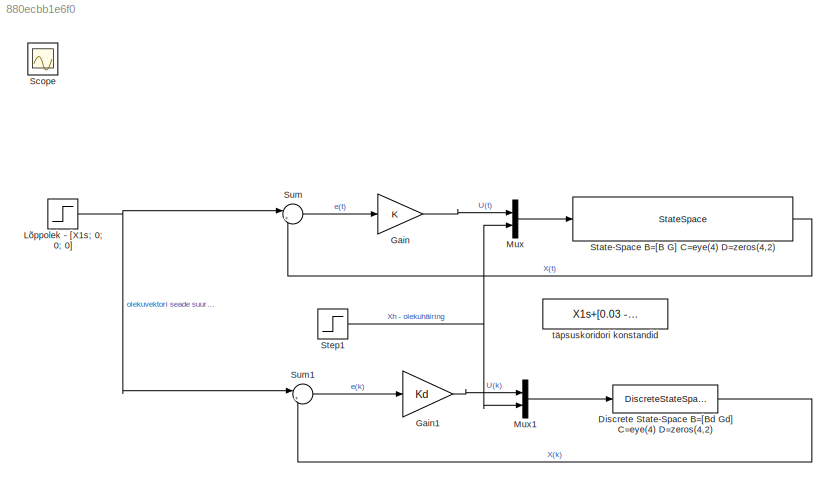
MODEL slx_880ecbb1e6f0
KIND model
CONFIG AbsTol = auto
CONFIG EnableMultiTasking = off
CONFIG FixedStep = auto
CONFIG MaxStep = auto
CONFIG MinStep = auto
CONFIG RelTol = 1e-3
CONFIG SampleTimeConstraint = Unconstrained
CONFIG SolverName = VariableStepAuto
CONFIG StartTime = 0.0
CONFIG StopTime = 40
BLOCK [DiscreteStateSpace] Discrete State-Space B=[Bd Gd] C=eye(4) D=zeros(4,2)
  A = Ad
  B = [Bd Gd]
  C = eye(4)
  D = zeros(4,2)
  SampleTime = td
BLOCK [Gain] Gain
  Gain = K
  Multiplication = Matrix(K*u)
BLOCK [Gain] Gain1
  Gain = Kd
  Multiplication = Matrix(K*u)
BLOCK [Step] Lõppolek - [X1s; 0; 0; 0]
  After = [X1s; 0; 0; 0]
  SampleTime = 0
  Time = 0
BLOCK [Mux] Mux
  DisplayOption = bar
  Inputs = 2
  Ports = [2, 1]
BLOCK [Mux] Mux1
  DisplayOption = bar
  Inputs = 2
  Ports = [2, 1]
BLOCK [Scope] Scope
  Floating = off
  IOType = viewer
  NumInputPorts = 1
  Ports = []
  ScopeSpecificationString = Simulink.scopes.TimeScopeBlockCfg('CurrentConfiguration', extmgr.ConfigurationSet(extmgr.Configuration('Core','General UI',true),extmgr.Configuration('Core','Source UI',true),extmgr.Configuration('Sources','WiredSimulink',true),extmgr.Configuration('Visuals','Time Domain',true,'SerializedDisplays',{struct('MinYLimReal','-405.05629','MaxYLimReal','2617.68141','YLabelReal','','MinYLimMag',' 0.00000'...<+2415ch>
BLOCK [StateSpace] State-Space B=[B G] C=eye(4) D=zeros(4,2)
  A = A
  B = [B G]
  C = eye(4)
  D = zeros(4,2)
  InitialCondition = 0
  Ports = [1, 1]
BLOCK [Step] Step1
  After = 6
  SampleTime = 0
  Time = 17
BLOCK [Sum] Sum
  Inputs = |+-
  Ports = [2, 1]
BLOCK [Sum] Sum1
  Inputs = |+-
  Ports = [2, 1]
BLOCK [Constant] täpsuskoridori konstandid
  Value = X1s+[0.03 -0.03]
LINE Discrete State-Space B=[Bd Gd] C=eye(4) D=zeros(4,2):1 -> Sum1:2
LINE Gain1:1 -> Mux1:1
LINE Gain:1 -> Mux:1
NET Lõppolek - [X1s; 0; 0; 0]:1 -> Sum1:1, Sum:1
LINE Mux1:1 -> Discrete State-Space B=[Bd Gd] C=eye(4) D=zeros(4,2):1
LINE Mux:1 -> State-Space B=[B G] C=eye(4) D=zeros(4,2):1
LINE State-Space B=[B G] C=eye(4) D=zeros(4,2):1 -> Sum:2
NET Step1:1 -> Mux1:2, Mux:2
LINE Sum1:1 -> Gain1:1
LINE Sum:1 -> Gain:1
note: NET lines group one-source signal fan-out (src -> all destinations, sorted); 1:1 wires keep LINE
